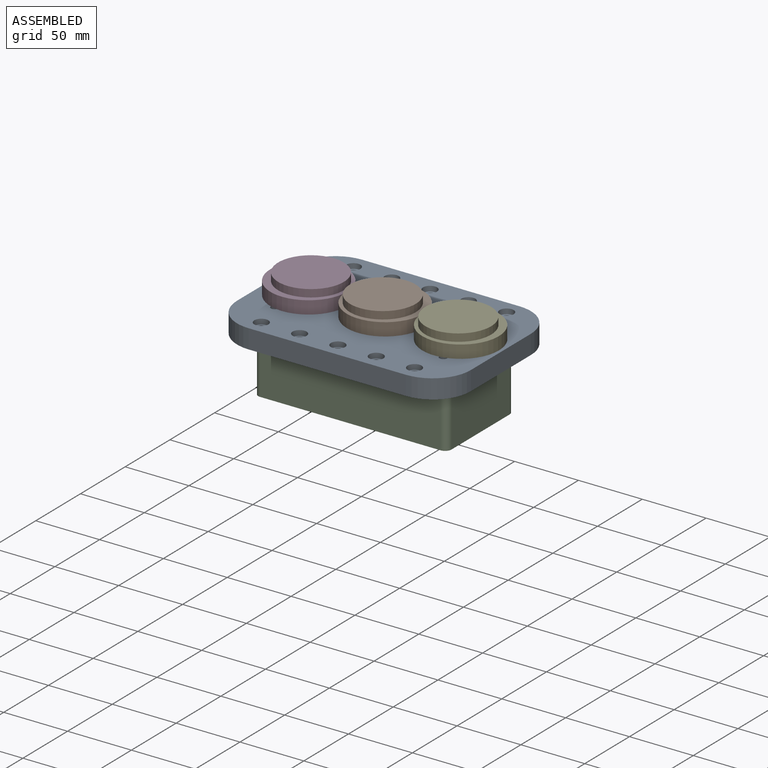
[diagram: assembled view]
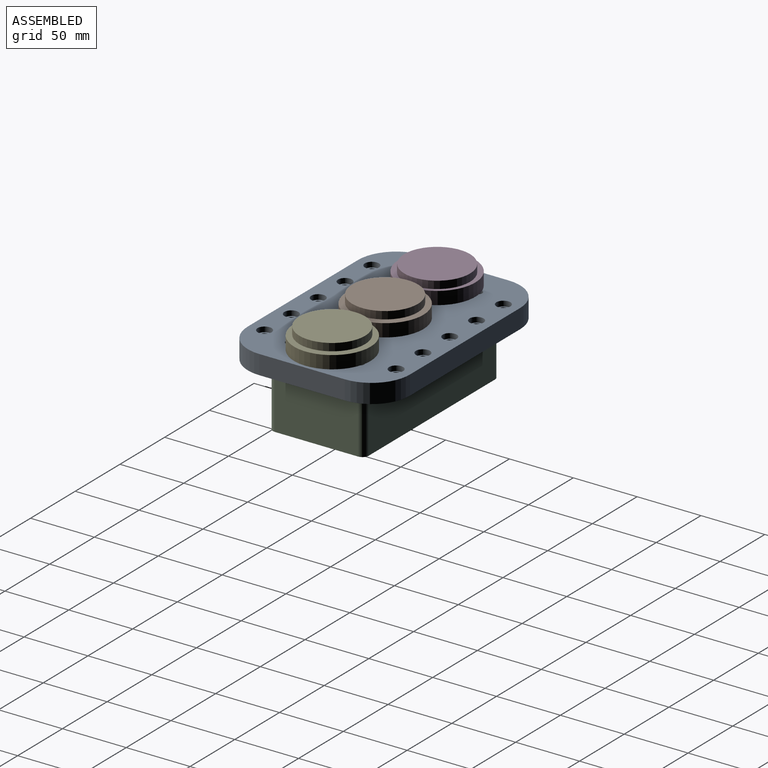
[diagram: assembled view, second angle]
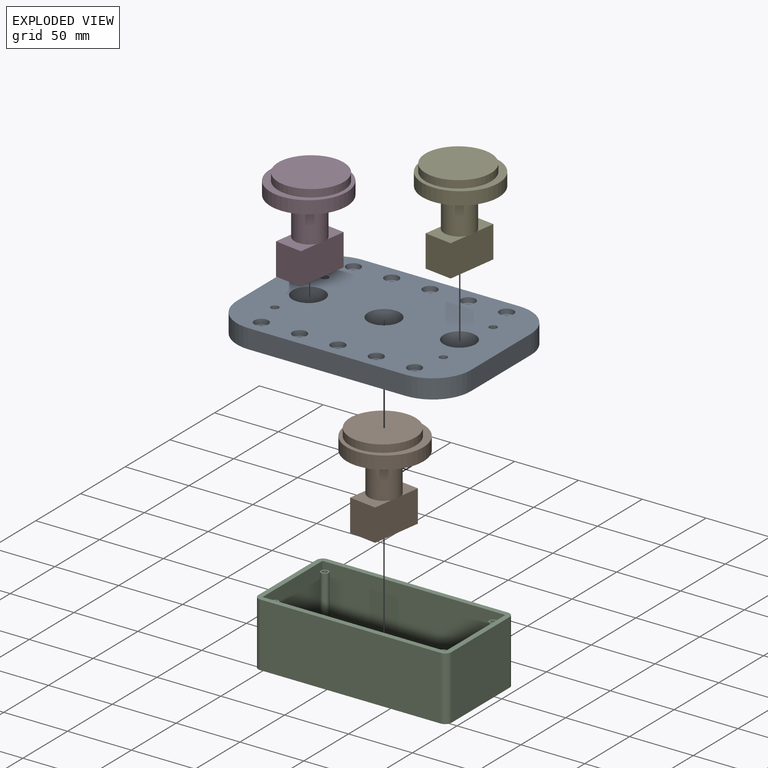
[diagram: exploded view]
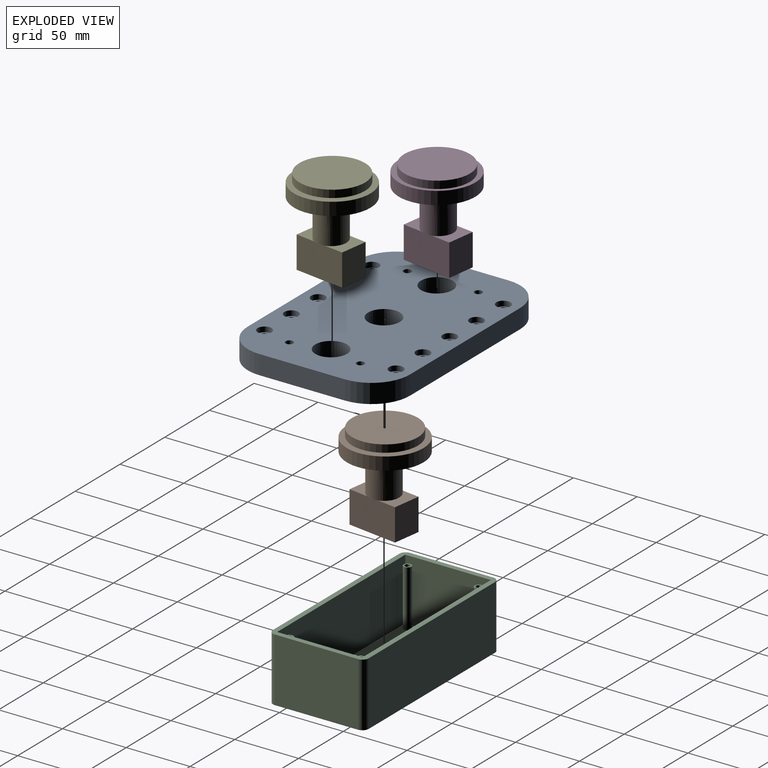
[diagram: exploded view, second angle]
ASSEMBLY  parts=5 mates=7
PART A: 47 faces, bbox 183.3x127x15 mm
  f0: cylinder r=4mm len=11mm, axis (0,0,-1), area 276.5mm2, adj f22,f45
  f1: cylinder r=4mm len=11mm, axis (0,0,-1), area 276.5mm2, adj f22,f43
  f2: cylinder r=4mm len=11mm, axis (0,0,-1), area 276.5mm2, adj f22,f42
  f3: cylinder r=4mm len=11mm, axis (0,0,-1), area 276.5mm2, adj f22,f40
  f4: cylinder r=4mm len=11mm, axis (0,0,-1), area 276.5mm2, adj f22,f38
  f5: cylinder r=4mm len=11mm, axis (0,0,-1), area 276.5mm2, adj f22,f35
  f6: cylinder r=4mm len=11mm, axis (0,0,-1), area 276.5mm2, adj f22,f33
  f7: cylinder r=4mm len=11mm, axis (0,0,-1), area 276.5mm2, adj f22,f32
  f8: cylinder r=4mm len=11mm, axis (0,0,-1), area 276.5mm2, adj f22,f30
  f9: cylinder r=4mm len=11mm, axis (0,0,-1), area 276.5mm2, adj f22,f27
  f10: plane 67x15mm, normal (-1,0,0), area 1005mm2, adj f21,f22,f23,f26
  f11: plane 123.25x15mm, normal (0,-1,0), area 1848.7mm2, adj f21,f22,f23,f24
  f12: plane 67x15mm, normal (1,0,0), area 1005mm2, adj f21,f22,f24,f25
  f13: cylinder r=3mm len=15mm, axis (0,0,-1), area 282.7mm2, adj f21,f22
  f14: cylinder r=3mm len=15mm, axis (0,0,-1), area 282.7mm2, adj f21,f22
  f15: cylinder r=3mm len=15mm, axis (0,0,-1), area 282.7mm2, adj f21,f22
  f16: cylinder r=3mm len=15mm, axis (0,0,-1), area 282.7mm2, adj f21,f22
  f17: cylinder r=12.5mm len=25mm, axis (0,0,-1), area 1178.1mm2, adj f21,f22
  f18: cylinder r=12.5mm len=25mm, axis (0,0,-1), area 1178.1mm2, adj f21,f22
  f19: cylinder r=12.5mm len=25mm, axis (0,0,-1), area 1178.1mm2, adj f21,f22
  f20: plane 123.25x15mm, normal (0,1,0), area 1848.7mm2, adj f21,f22,f25,f26
  f21: plane 183.25x127mm, normal (0,0,1), area 19964.1mm2, adj f10,f11,f12,f13,f14,f15,f16,f17
  f22: plane 183.25x127mm, normal (0,0,-1), area 20411.8mm2, adj f0,f1,f2,f3,f4,f5,f6,f7
  f23: cylinder r=30mm len=30mm, axis (0,0,-1), area 706.9mm2, adj f10,f11,f21,f22
  f24: cylinder r=30mm len=30mm, axis (0,0,1), area 706.9mm2, adj f11,f12,f21,f22
  f25: cylinder r=30mm len=30mm, axis (0,0,-1), area 706.9mm2, adj f12,f20,f21,f22
  f26: cylinder r=30mm len=30mm, axis (0,0,1), area 706.9mm2, adj f10,f20,f21,f22
  f27: plane 11x11mm, normal (0,0,1), area 44.8mm2, adj f9,f28
  f28: cylinder r=5.5mm len=11mm, axis (0,0,1), area 138.2mm2, adj f21,f27
  f29: cylinder r=5.5mm len=11mm, axis (0,0,1), area 138.2mm2, adj f21,f30
  f30: plane 11x11mm, normal (0,0,1), area 44.8mm2, adj f8,f29
  f31: cylinder r=5.5mm len=11mm, axis (0,0,1), area 138.2mm2, adj f21,f32
  f32: plane 11x11mm, normal (0,0,1), area 44.8mm2, adj f7,f31
  f33: plane 11x11mm, normal (0,0,1), area 44.8mm2, adj f6,f34
  f34: cylinder r=5.5mm len=11mm, axis (0,0,1), area 138.2mm2, adj f21,f33
  f35: plane 11x11mm, normal (0,0,1), area 44.8mm2, adj f5,f36
  f36: cylinder r=5.5mm len=11mm, axis (0,0,1), area 138.2mm2, adj f21,f35
  f37: cylinder r=5.5mm len=11mm, axis (0,0,1), area 138.2mm2, adj f21,f38
  f38: plane 11x11mm, normal (0,0,1), area 44.8mm2, adj f4,f37
  f39: cylinder r=5.5mm len=11mm, axis (0,0,1), area 138.2mm2, adj f21,f40
  f40: plane 11x11mm, normal (0,0,1), area 44.8mm2, adj f3,f39
  f41: cylinder r=5.5mm len=11mm, axis (0,0,1), area 138.2mm2, adj f21,f42
  f42: plane 11x11mm, normal (0,0,1), area 44.8mm2, adj f2,f41
  f43: plane 11x11mm, normal (0,0,1), area 44.8mm2, adj f1,f44
  f44: cylinder r=5.5mm len=11mm, axis (0,0,1), area 138.2mm2, adj f21,f43
  f45: plane 11x11mm, normal (0,0,1), area 44.8mm2, adj f0,f46
  f46: cylinder r=5.5mm len=11mm, axis (0,0,1), area 138.2mm2, adj f21,f45
PART B: 15 faces, bbox 60x60x71 mm
  f0: plane 9.59x1mm, normal (0,0,-1), area 6.4mm2, adj f6,f13
  f1: cylinder r=25.75mm len=51.5mm, axis (0,0,-1), area 954.6mm2, adj f2,f5
  f2: plane 51.5x51.5mm, normal (0,0,1), area 2083.1mm2, adj f1
  f3: cylinder r=30mm len=60mm, axis (0,0,1), area 1903.8mm2, adj f4,f5
  f4: plane 60x60mm, normal (0,0,-1), area 2375mm2, adj f3,f6
  f5: plane 60x60mm, normal (0,0,1), area 744.4mm2, adj f1,f3
  f6: cylinder r=12mm len=30mm, axis (0,0,1), area 2261.9mm2, adj f0,f4,f7,f8,f9
  f7: plane 9.59x1mm, normal (0,0,-1), area 6.4mm2, adj f6,f11
  f8: plane 22x15.2mm, normal (0,0,1), area 220.3mm2, adj f6,f10,f11,f13
  f9: plane 22x15.2mm, normal (0,0,1), area 220.3mm2, adj f6,f11,f12,f13
  f10: plane 25x22mm, normal (-1,0,0), area 550mm2, adj f8,f11,f13,f14
  f11: plane 40x25mm, normal (0,1,0), area 1000mm2, adj f7,f8,f9,f10,f12,f14
  f12: plane 25x22mm, normal (1,0,0), area 550mm2, adj f9,f11,f13,f14
  f13: plane 40x25mm, normal (0,-1,0), area 1000mm2, adj f0,f8,f9,f10,f12,f14
  f14: plane 40x22mm, normal (0,0,-1), area 880mm2, adj f10,f11,f12,f13
PART C: 31 faces, bbox 151.3x75x50 mm
  f0: plane 141.25x50mm, normal (0,1,0), area 7062.5mm2, adj f8,f10,f27,f30
  f1: plane 65x50mm, normal (-1,0,0), area 3250mm2, adj f8,f10,f27,f28
  f2: plane 141.25x50mm, normal (0,-1,0), area 7062.5mm2, adj f8,f10,f28,f29
  f3: plane 143.25x48.5mm, normal (0,1,0), area 6947.6mm2, adj f4,f6,f8,f9
  f4: plane 67x48.5mm, normal (1,0,0), area 3249.5mm2, adj f3,f5,f8,f9
  f5: plane 143.25x48.5mm, normal (0,-1,0), area 6947.6mm2, adj f4,f6,f8,f9
  f6: plane 67x48.5mm, normal (-1,0,0), area 3249.5mm2, adj f3,f5,f8,f9
  f7: plane 65x50mm, normal (1,0,0), area 3250mm2, adj f8,f10,f29,f30
  f8: plane 151.25x75mm, normal (0,0,1), area 1724.5mm2, adj f0,f1,f2,f3,f4,f5,f6,f7
  f9: plane 143.25x67mm, normal (0,0,1), area 9484.7mm2, adj f3,f4,f5,f6,f12,f15,f19,f24
  f10: plane 151.25x75mm, normal (0,0,-1), area 11322.3mm2, adj f0,f1,f2,f7,f27,f28,f29,f30
  f11: cylinder r=2mm len=44.5mm, axis (0,0,-1), area 559.2mm2, adj f13,f14
  f12: cylinder r=3mm len=44.5mm, axis (0,0,-1), area 838.8mm2, adj f9,f13
  f13: plane 6x6mm, normal (0,0,1), area 15.7mm2, adj f11,f12
  f14: plane 4x4mm, normal (0,0,1), area 12.6mm2, adj f11
  f15: cylinder r=3mm len=44.5mm, axis (0,0,-1), area 838.8mm2, adj f9,f17
  f16: cylinder r=2mm len=44.5mm, axis (0,0,-1), area 559.2mm2, adj f17,f18
  f17: plane 6x6mm, normal (0,0,1), area 15.7mm2, adj f15,f16
  f18: plane 4x4mm, normal (0,0,1), area 12.6mm2, adj f16
  f19: cylinder r=3mm len=44.5mm, axis (0,0,-1), area 838.8mm2, adj f9,f21
  f20: cylinder r=2mm len=44.5mm, axis (0,0,-1), area 559.2mm2, adj f21,f22
  f21: plane 6x6mm, normal (0,0,1), area 15.7mm2, adj f19,f20
  f22: plane 4x4mm, normal (0,0,1), area 12.6mm2, adj f20
  f23: cylinder r=2mm len=44.5mm, axis (0,0,-1), area 559.2mm2, adj f25,f26
  f24: cylinder r=3mm len=44.5mm, axis (0,0,-1), area 838.8mm2, adj f9,f25
  f25: plane 6x6mm, normal (0,0,1), area 15.7mm2, adj f23,f24
  f26: plane 4x4mm, normal (0,0,1), area 12.6mm2, adj f23
  f27: cylinder r=5mm len=50mm, axis (0,0,1), area 392.7mm2, adj f0,f1,f8,f10
  f28: cylinder r=5mm len=50mm, axis (0,0,-1), area 392.7mm2, adj f1,f2,f8,f10
  f29: cylinder r=5mm len=50mm, axis (0,0,1), area 392.7mm2, adj f2,f7,f8,f10
  f30: cylinder r=5mm len=50mm, axis (0,0,-1), area 392.7mm2, adj f0,f7,f8,f10
PART D: same geometry as B
PART E: same geometry as B
PLACE A t=(-76.86,-21.91,65.91)mm
PLACE B rot(axis=(0,0,1),81.8deg) t=(-76.86,-21.91,11.01)mm
PLACE C t=(-76.86,-21.91,79.91)mm fixed
PLACE D rot(axis=(0,0,-1),98.2deg) t=(-135.81,-20.7,11.01)mm
PLACE E rot(axis=(0,0,1),81.8deg) t=(-17.74,-21.91,11.01)mm
MATE revolute A.f18 <-> D.f4  axis (0,0,1) through (-135.99,-21.91,0.91)mm
MATE revolute A.f16 <-> C.f23  axis (0,0,-1) through (-142.84,-49.76,-14.09)mm
MATE revolute A.f17 <-> B.f6  axis (0,0,1) through (-76.86,-21.91,0.91)mm
MATE revolute A.f19 <-> E.f6  axis (0,0,1) through (-17.74,-21.91,0.91)mm
MATE revolute C.f19 <-> A.f15  axis (0,0,1) through (-10.89,-49.76,-14.09)mm
MATE parallel E.f12 <-> B.f12  axis (0.14,0.99,0) through (-14.87,-2.12,-41.59)mm
MATE parallel D.f10 <-> B.f12  axis (0.14,0.99,0) through (-132.94,-0.91,-41.59)mm
